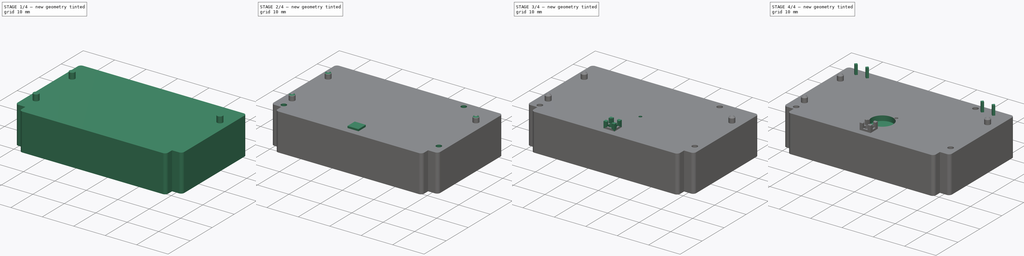
[diagram: build sequence overview — one tinted view per stage of 4, left to right]
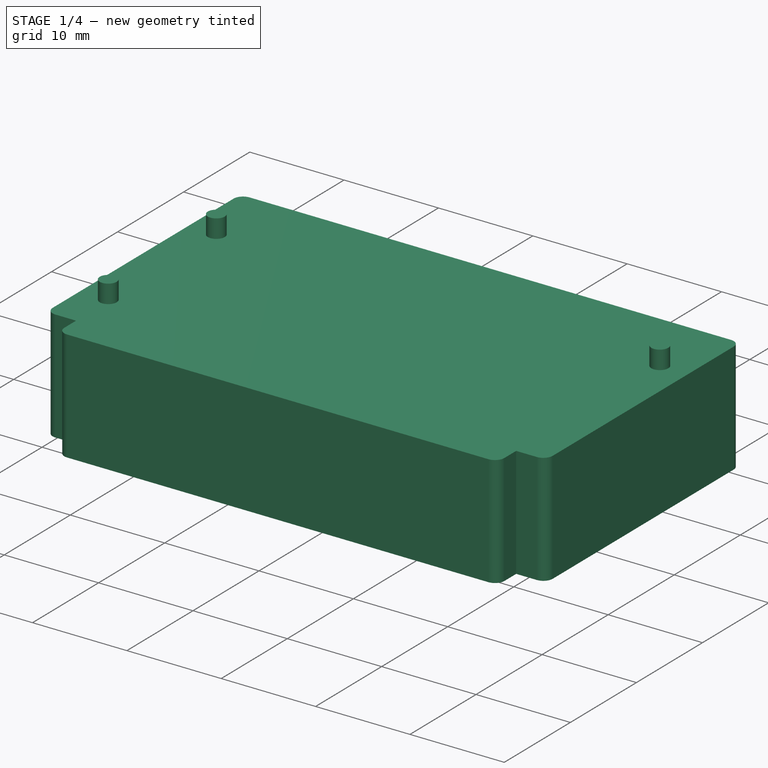
[diagram: stage 1 of 4 — iso view after this stage's code; geometry added in this stage tinted green]
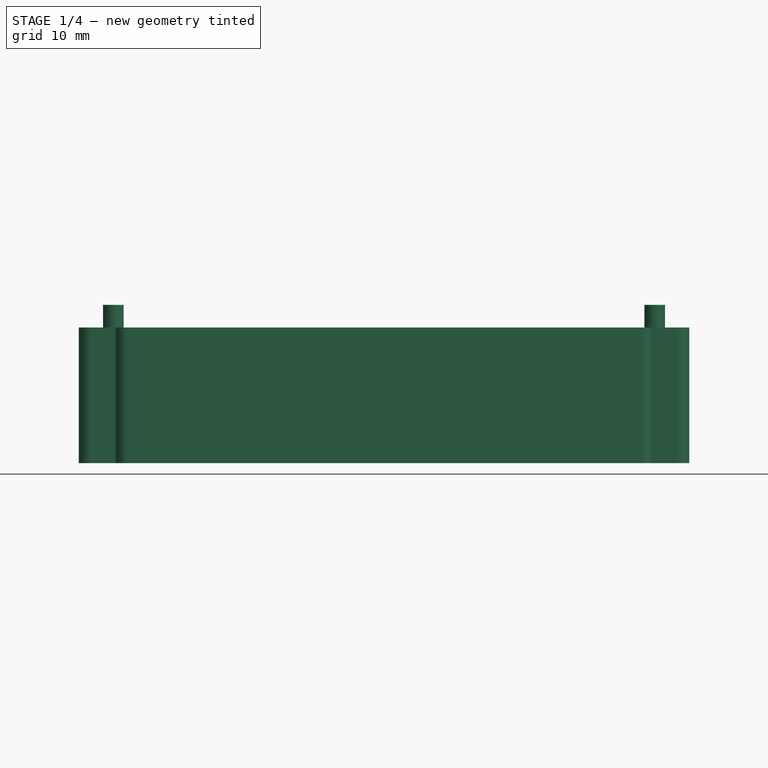
[diagram: stage 1 of 4 — front view after this stage's code; geometry added in this stage tinted green]
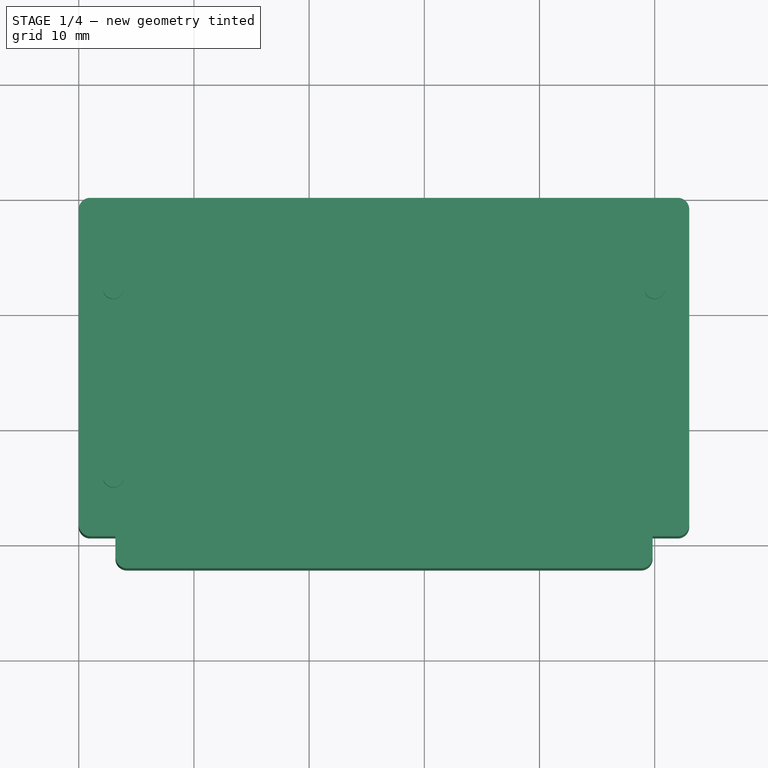
[diagram: stage 1 of 4 — top view after this stage's code; geometry added in this stage tinted green]
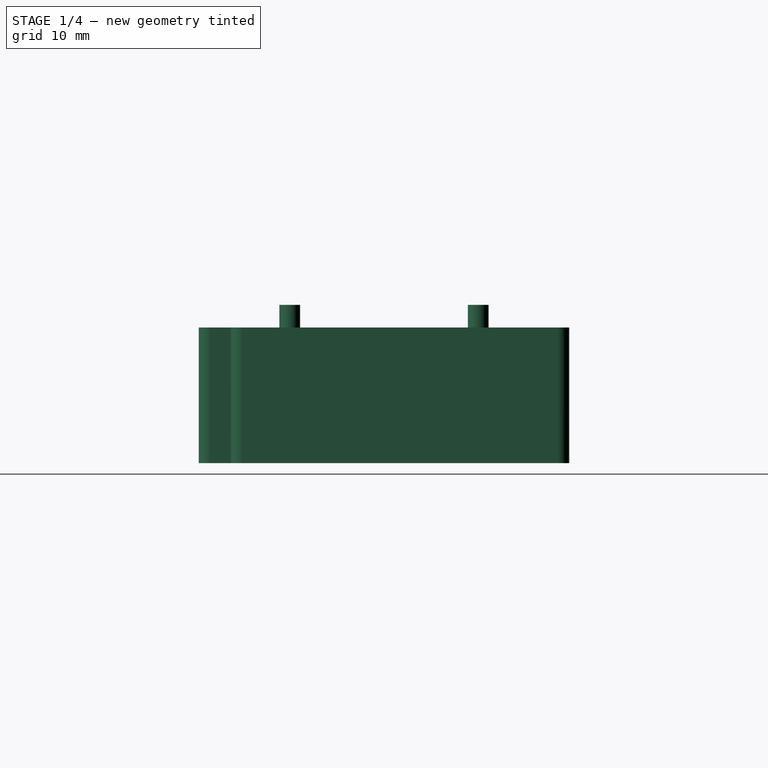
[diagram: stage 1 of 4 — right view after this stage's code; geometry added in this stage tinted green]
FCSTD DOCUMENT  (FreeCAD 1.0R39285 (Git))
Label: HD-1688_Inner
License: All rights reserved
LicenseURL: https://en.wikipedia.org/wiki/All_rights_reserved
objects: Sketcher::SketchObject×11, PartDesign::Pad×6, PartDesign::Pocket×5, PartDesign::Body×2, Spreadsheet::Sheet×1, PartDesign::Fillet×1, PartDesign::Chamfer×1
note: 63 computed .brp shape members not serialized (recipe doc carries the construction recipe); baked Part::Feature solids carry a one-line shape summary decoded from their .brp

FEATURE [Spreadsheet::Sheet] Spreadsheet  label="Dim"
  cells = A1='Dimension; B1='Value (mm); A2='Box Length; B2(Box_Length)==53 mm; A3='Box Width; B3(Box_Width)==32.16 mm; A4='Box Height; B4(Box_Height)==11.78 mm; A5='Notch Length; B5(Notch_Length)==3.18 mm; A6='Notch Width; B6(Notch_Width)==2.78 mm; A7='Pin Diameter; B7(Pin_Diameter)==1.8 mm; A8='Pin Height; B8(Pin_Height)==13.74 mm - B4; A9='Side Filet; B9(Side_Filet)==1 mm; A10='Pin X Distance; B10(Pin_X_Distance)==3.9 mm - Pin_Diameter / 2; A11='Pin Y Distance; B11(Pin_Y_Distance)==8.8 mm - Pin_Diameter / 2; A12='Pin1 X; B12(Pin1_X)==Box_Length - Pin_X_Distance; A13='Pin1 Y; B13(Pin1_Y)==Pin_Y_Distance; A14='Pin2 X; B14(Pin2_X)==Pin_X_Distance; A15='Pin2 Y; B15(Pin2_Y)==Pin_Y_Distance; A16='Pin3 X; B16(Pin3_X)==Pin_X_Distance; A17='Pin3 Y; B17(Pin3_Y)==Box_Width - Pin_Y_Distance; A18='Pin Chamfer; B18(Pin_Chamfer)==0.5 mm; A19='Screw Diameter; B19(Screw_Diameter)==1.7 mm; A20='Screw Length; B20(Screw_Length)==5 mm; A21='Hole1 X; B21(Hole1_X)==50.6 mm; A22='Hole1 Y; B22(Hole1_Y)==25.6 mm; A23='Hole2 X; B23(Hole2_X)==42 mm; A24='Hole2 Y; B24(Hole2_Y)==2 mm; A25='Hole3 X; B25(Hole3_X)==3 mm; A26='Hole3 Y; B26(Hole3_Y)==28 mm; A27='Coil Y; B27(Coil_Y)==2.6 mm; A28='Coil1 X; B28(Coil1_X)==4.3 mm; A29='Coil2 X; B29(Coil2_X)==44.6 mm; A30='Coil Pin Dim; B30(Coil_Pin_Dim)==0.8 mm; A31='Coil Pin Sep; B31(Coil_Pin_Sep)==4.7 mm; A32='Holding Plate Width; B32(Holding_Plate_Width)==19 mm; A33='Holding Plate Length; B33(Holding_Plate_Length)==24 mm; A34='Holding Plate Y; B34(Holding_Plate_Y)==21 mm; A35='Holding Plate Filet; B35(Holding_Plate_Filet)==1 mm; A36='Cell Slot Length; B36(Cell_Slot_Length)==3.3 mm; A37='Cell Slot Width; B37(Cell_Slot_Width)==3.5 mm; A38='Cell Slot Height; B38(Cell_Slot_Height)==0.6 mm; A39='Cell Slot Hole Diameter; B39(Cell_Slot_Hole_Diameter)==2.5 mm; A40='Cell Slot Hole Depth; B40(Cell_Slot_Hole_Depth)==1 mm; A41='Cell Slit Length; B41(Cell_Slit_Length)==1 mm; A42='Cell Slit Width; B42(Cell_Slit_Width)==2.5 mm; A43='Cell Slot Pin Thickness; B43(Cell_Slot_Pin_Thickness)==1 mm; A44='Cell Slot Thickness; B44(Cell_Slot_Thickness)==0.7 mm; A45='Cell Pins Height; B45(Cell_Pins_Height)==3.3 mm - 1.8 mm; A46='Hole Bottom; B46(Hole_Bottom)==4.32 mm; A47='Hole Diameter; B47(Hole_Diameter)==7 mm; A48='Pin Hole Y; B48(Pin_Hole_Y)==11.4 mm; A49='Pin Hole X; B49(Pin_Hole_X)==10 mm; A50='Pin Hole Diameter; B50(Pin_Hole_Diameter)==1 mm
FEATURE [Sketcher::SketchObject] Sketch
  ArcFitTolerance = 1e-06
  AttachmentSupport = -> [XY_Plane]
  FullyConstrained = true
  MakeInternals = false
  MapMode = 5
  expr: Constraints[17] = <<Dim>>.Box_Width
  expr: Constraints[18] = <<Dim>>.Box_Length
  expr: Constraints[19] = <<Dim>>.Notch_Length
  expr: Constraints[22] = <<Dim>>.Notch_Width
  sketch-geometry (8):
    g0: LineSegment StartX=0 StartY=0 StartZ=0 EndX=53 EndY=0 EndZ=0
    g1: LineSegment StartX=53 StartY=0 StartZ=0 EndX=53 EndY=-29.38 EndZ=0
    g2: LineSegment StartX=53 StartY=-29.38 StartZ=0 EndX=49.82 EndY=-29.38 EndZ=0
    g3: LineSegment StartX=49.82 StartY=-29.38 StartZ=0 EndX=49.82 EndY=-32.16 EndZ=0
    g4: LineSegment StartX=49.82 StartY=-32.16 StartZ=0 EndX=3.18 EndY=-32.16 EndZ=0
    g5: LineSegment StartX=3.18 StartY=-32.16 StartZ=0 EndX=3.18 EndY=-29.38 EndZ=0
    g6: LineSegment StartX=3.18 StartY=-29.38 StartZ=0 EndX=0 EndY=-29.38 EndZ=0
    g7: LineSegment StartX=0 StartY=-29.38 StartZ=0 EndX=0 EndY=0 EndZ=0
  constraints (23):
    c: Coincident(g-1,g0)
    c: PointOnObject(g0,g-1)
    c: Coincident(g0,g1)
    c: Vertical(g1)
    c: Coincident(g1,g2)
    c: Horizontal(g2)
    c: Coincident(g2,g3)
    c: Vertical(g3)
    c: Coincident(g3,g4)
    c: Horizontal(g4)
    c: Coincident(g4,g5)
    c: Vertical(g5)
    c: Coincident(g5,g6)
    c: PointOnObject(g6,g-2)
    c: Horizontal(g6)
    c: Coincident(g6,g7)
    c: Coincident(g7,g0)
    c: DistanceY(g4,g0) = 32.16
    c: DistanceX(g0,g0) = 53
    c: DistanceX(g2,g1) = 3.18
    c: Equal(g2,g6)
    c: Equal(g3,g5)
    c: DistanceY(g3,g2) = 2.78
FEATURE [PartDesign::Pad] Pad
  Direction = (0,0,1)
  Length = 11.78
  Length2 = 10
  Profile = -> Sketch
  ReferenceAxis = -> Sketch [N_Axis]
  Refine = true
  Suppressed = false
  Type = 0
  expr: Length = <<Dim>>.Box_Height
FEATURE [PartDesign::Fillet] Fillet
  Base = -> Pad [Edge5,Edge11,Edge2,Edge14,Edge20,Edge1]
  BaseFeature = -> Pad
  Radius = 1
  Refine = true
  SupportTransform = false
  Suppressed = false
  UseAllEdges = false
  expr: Radius = <<Dim>>.Side_Filet
FEATURE [Sketcher::SketchObject] Sketch001
  ArcFitTolerance = 1e-06
  AttachmentSupport = -> [Fillet]
  FullyConstrained = true
  MakeInternals = false
  MapMode = 5
  Placement = pos=(0,0,11.78) rot=(0,0,1;0rad)
  expr: Constraints[2] = <<Dim>>.Pin3_X
  expr: Constraints[3] = -<<Dim>>.Pin3_Y
  expr: Constraints[4] = <<Dim>>.Pin2_X
  expr: Constraints[5] = -<<Dim>>.Pin2_Y
  expr: Constraints[6] = <<Dim>>.Pin1_X
  expr: Constraints[7] = -<<Dim>>.Pin1_Y
  sketch-geometry (3):
    g0: Circle CenterX=3 CenterY=-24.26 CenterZ=0 NormalX=0 NormalY=0 NormalZ=1 AngleXU=0 Radius=0.9
    g1: Circle CenterX=3 CenterY=-7.9 CenterZ=0 NormalX=0 NormalY=0 NormalZ=1 AngleXU=0 Radius=0.9
    g2: Circle CenterX=50 CenterY=-7.9 CenterZ=0 NormalX=0 NormalY=0 NormalZ=1 AngleXU=0 Radius=0.9
  constraints (9):
    c: Diameter(g1) = 1.8
    c: Equal(g1,g0)
    c: DistanceX(g0) = 3
    c: DistanceY(g0) = -24.26
    c: DistanceX(g1) = 3
    c: DistanceY(g1) = -7.9
    c: DistanceX(g2) = 50
    c: DistanceY(g2) = -7.9
    c: Equal(g1,g2)
FEATURE [PartDesign::Pad] Pad001
  BaseFeature = -> Fillet
  Direction = (0,0,1)
  Length = 1.96
  Length2 = 10
  Profile = -> Sketch001
  ReferenceAxis = -> Sketch001 [N_Axis]
  Refine = true
  Suppressed = false
  Type = 0
  expr: Length = <<Dim>>.Pin_Height
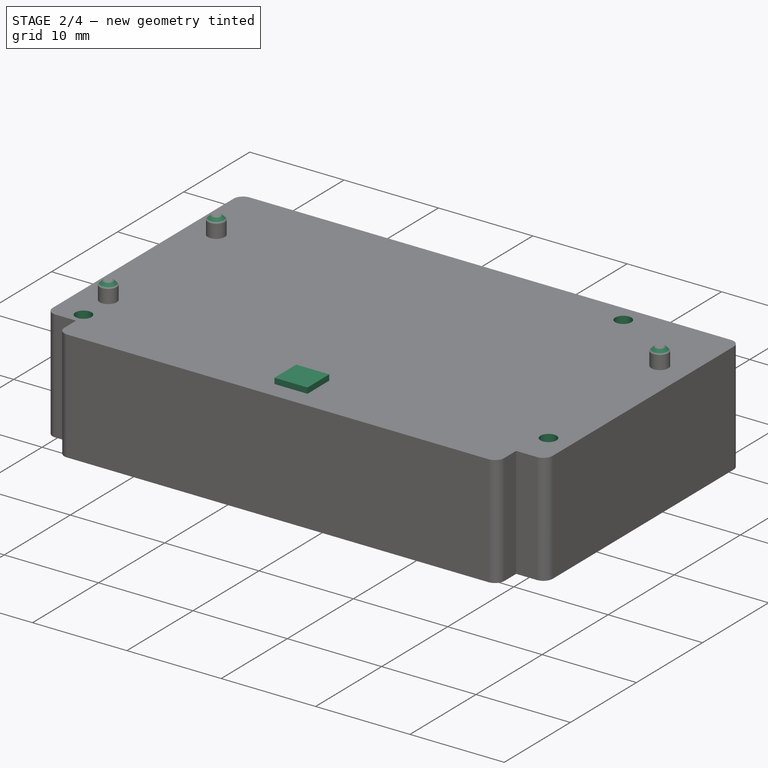
[diagram: stage 2 of 4 — iso view after this stage's code; geometry added in this stage tinted green]
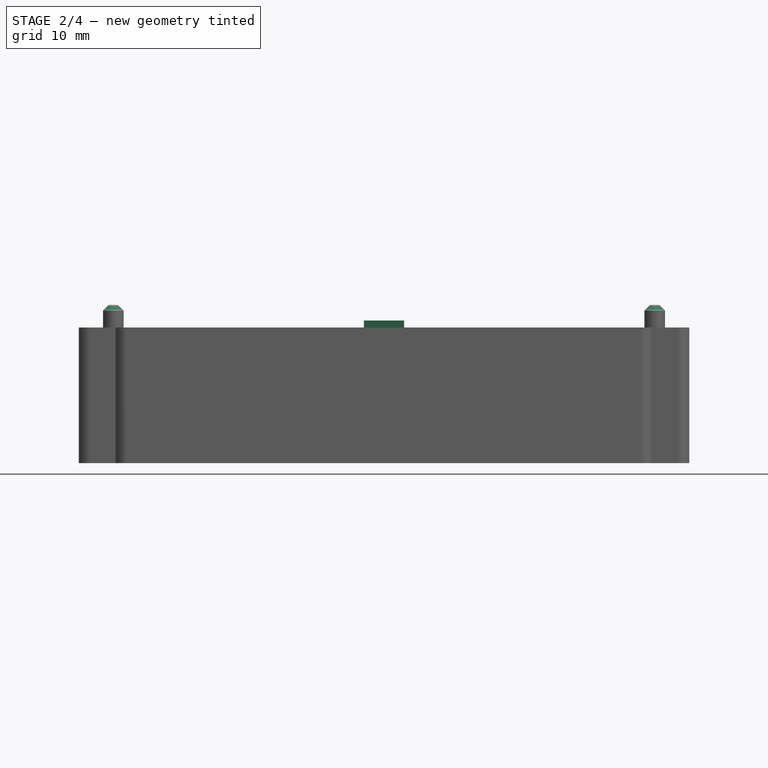
[diagram: stage 2 of 4 — front view after this stage's code; geometry added in this stage tinted green]
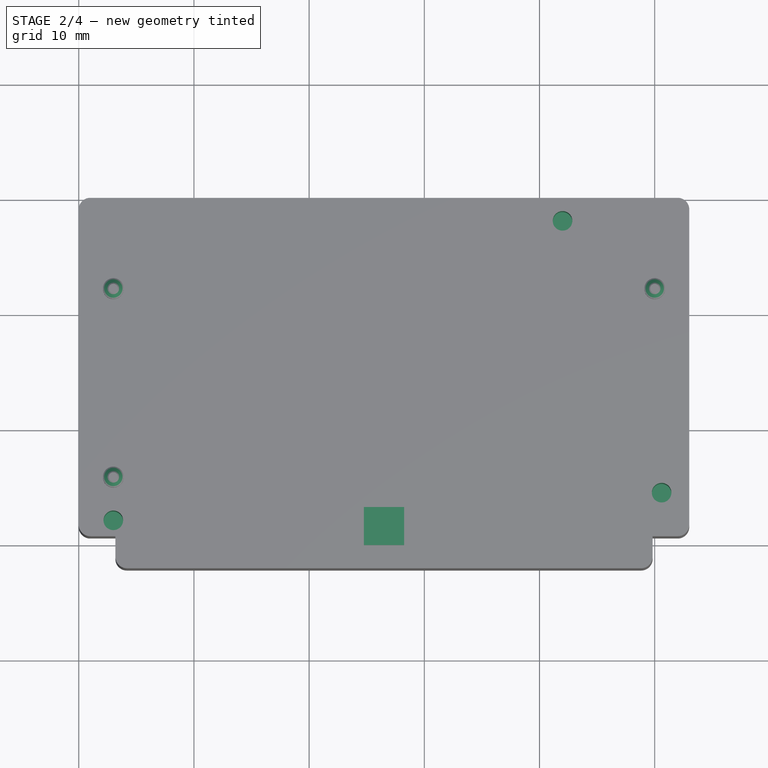
[diagram: stage 2 of 4 — top view after this stage's code; geometry added in this stage tinted green]
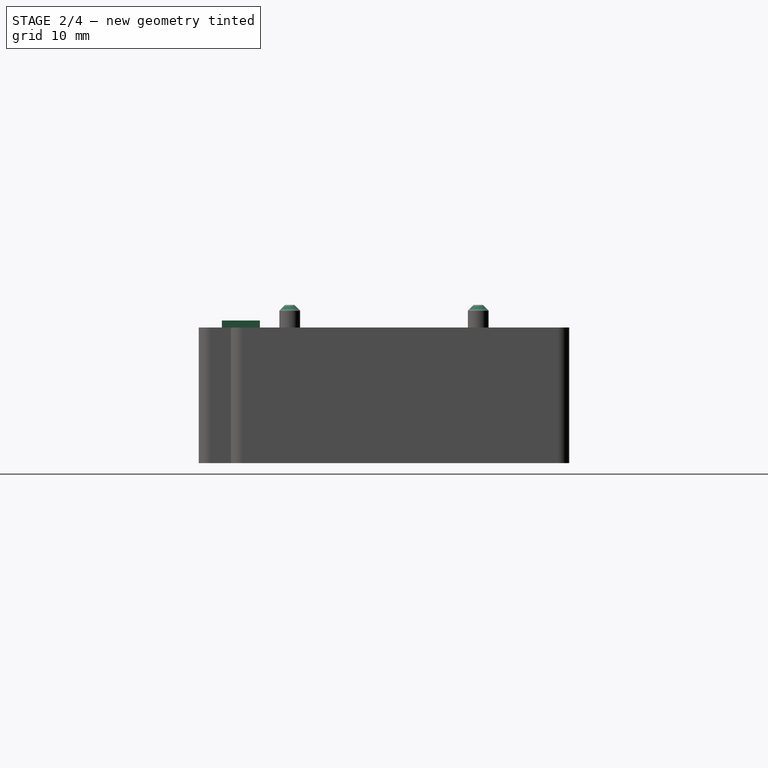
[diagram: stage 2 of 4 — right view after this stage's code; geometry added in this stage tinted green]
FEATURE [PartDesign::Chamfer] Chamfer
  Angle = 45
  Base = -> Pad001 [Edge49,Edge47,Edge51]
  BaseFeature = -> Pad001
  ChamferType = 0
  FlipDirection = false
  Refine = true
  Size = 0.5
  Size2 = 1
  SupportTransform = false
  Suppressed = false
  UseAllEdges = false
  expr: Size = <<Dim>>.Pin_Chamfer
FEATURE [Sketcher::SketchObject] Sketch002
  ArcFitTolerance = 1e-06
  AttachmentSupport = -> [Chamfer]
  FullyConstrained = true
  MakeInternals = false
  MapMode = 5
  Placement = pos=(0,0,11.78) rot=(0,0,1;0rad)
  expr: Constraints[0] = <<Dim>>.Screw_Diameter
  expr: Constraints[3] = <<Dim>>.Hole3_X
  expr: Constraints[4] = -<<Dim>>.Hole3_Y
  expr: Constraints[5] = <<Dim>>.Hole2_X
  expr: Constraints[6] = -<<Dim>>.Hole2_Y
  expr: Constraints[7] = <<Dim>>.Hole1_X
  expr: Constraints[8] = -<<Dim>>.Hole1_Y
  sketch-geometry (3):
    g0: Circle CenterX=50.6 CenterY=-25.6 CenterZ=0 NormalX=0 NormalY=0 NormalZ=1 AngleXU=0 Radius=0.85
    g1: Circle CenterX=42 CenterY=-2 CenterZ=0 NormalX=0 NormalY=0 NormalZ=1 AngleXU=0 Radius=0.85
    g2: Circle CenterX=3 CenterY=-28 CenterZ=0 NormalX=0 NormalY=0 NormalZ=1 AngleXU=0 Radius=0.85
  constraints (9):
    c: Diameter(g0) = 1.7
    c: Equal(g0,g1)
    c: Equal(g0,g2)
    c: DistanceX(g2) = 3
    c: DistanceY(g2) = -28
    c: DistanceX(g1) = 42
    c: DistanceY(g1) = -2
    c: DistanceX(g0) = 50.6
    c: DistanceY(g0) = -25.6
FEATURE [PartDesign::Pocket] Pocket
  BaseFeature = -> Chamfer
  Direction = (0,0,-1)
  Length = 5
  Length2 = 5
  Profile = -> Sketch002
  ReferenceAxis = -> Sketch002 [N_Axis]
  Refine = true
  Suppressed = false
  Type = 0
  expr: Length = <<Dim>>.Screw_Length
FEATURE [PartDesign::Body] Body001  label="Pins"
  AllowCompound = true
  Group = -> [Sketch003,Pad002,Sketch004,Pad003]
  Origin = -> Origin001
  Tip = -> Pad003
FEATURE [Sketcher::SketchObject] Sketch005
  ArcFitTolerance = 1e-06
  AttachmentSupport = -> [Pocket]
  ExternalGeometry = -> [Pocket]
  FullyConstrained = true
  MakeInternals = false
  MapMode = 5
  Placement = pos=(0,0,11.78) rot=(0,0,1;0rad)
  expr: Constraints[19] = <<Dim>>.Holding_Plate_Filet
  expr: Constraints[20] = <<Dim>>.Holding_Plate_Width
  expr: Constraints[21] = <<Dim>>.Holding_Plate_Y
  expr: Constraints[22] = <<Dim>>.Holding_Plate_Length
  sketch-geometry (13):
    g0: LineSegment StartX=14.5 StartY=-12.16 StartZ=0 EndX=14.5 EndY=-29.16 EndZ=0
    g1: LineSegment StartX=15.5 StartY=-30.16 StartZ=0 EndX=37.5 EndY=-30.16 EndZ=0
    g2: LineSegment StartX=38.5 StartY=-29.16 StartZ=0 EndX=38.5 EndY=-12.16 EndZ=0
    g3: LineSegment StartX=37.5 StartY=-11.16 StartZ=0 EndX=15.5 EndY=-11.16 EndZ=0
    g4: ArcOfCircle CenterX=15.5 CenterY=-12.16 CenterZ=0 NormalX=0 NormalY=0 NormalZ=1 AngleXU=0 Radius=1 StartAngle=1.5708 EndAngle=3.14159
    g5: ArcOfCircle CenterX=15.5 CenterY=-29.16 CenterZ=0 NormalX=0 NormalY=0 NormalZ=1 AngleXU=0 Radius=1 StartAngle=3.14159 EndAngle=4.71239
    g6: ArcOfCircle CenterX=37.5 CenterY=-29.16 CenterZ=0 NormalX=0 NormalY=0 NormalZ=1 AngleXU=0 Radius=1 StartAngle=4.71239 EndAngle=6.28319
    g7: ArcOfCircle CenterX=37.5 CenterY=-12.16 CenterZ=0 NormalX=0 NormalY=0 NormalZ=1 AngleXU=0 Radius=1 StartAngle=2e-16 EndAngle=1.5708
    g8: GeomPoint [constr] X=14.5 Y=-11.16 Z=0
    g9: GeomPoint [constr] X=38.5 Y=-30.16 Z=0
    g10: LineSegment [constr] StartX=26.5 StartY=-11.16 StartZ=0 EndX=26.5 EndY=-30.16 EndZ=0
    g11: LineSegment [constr] StartX=0 StartY=-28.38 StartZ=0 EndX=26.5 EndY=-28.38 EndZ=0
    g12: LineSegment [constr] StartX=26.5 StartY=-28.38 StartZ=0 EndX=53 EndY=-28.38 EndZ=0
  constraints (31):
    c: Tangent(g0,g4) = -1.5708
    c: Tangent(g0,g5) = -1.5708
    c: Tangent(g1,g5) = -1.5708
    c: Tangent(g1,g6) = -1.5708
    c: Tangent(g2,g6) = -1.5708
    c: Tangent(g2,g7) = -1.5708
    c: Tangent(g3,g7) = -1.5708
    c: Tangent(g3,g4) = -1.5708
    c: Vertical(g0)
    c: Vertical(g2)
    c: Horizontal(g1)
    c: Horizontal(g3)
    c: Equal(g4,g5)
    c: Equal(g5,g6)
    c: Equal(g6,g7)
    c: PointOnObject(g8,g0)
    c: PointOnObject(g8,g3)
    c: PointOnObject(g9,g1)
    c: PointOnObject(g9,g2)
    c: Radius(g5) = 1
    c: DistanceY(g1,g3) = 19
    c: DistanceY(g-3,g3) = 21
    c: DistanceX(g0,g2) = 24
    c: Symmetric(g3,g3,g10)
    c: Symmetric(g1,g1,g10)
    c: Coincident(g11,g-4)
    c: PointOnObject(g11,g10)
    c: Horizontal(g11)
    c: Coincident(g12,g11)
    c: Coincident(g12,g-5)
    c: Equal(g11,g12)
FEATURE [Sketcher::SketchObject] Sketch006
  ArcFitTolerance = 1e-06
  AttachmentSupport = -> [Pocket]
  ExternalGeometry = -> [Sketch005]
  FullyConstrained = true
  MakeInternals = false
  MapMode = 5
  Placement = pos=(0,0,11.78) rot=(0,0,1;0rad)
  expr: Constraints[10] = <<Dim>>.Cell_Slot_Length
  expr: Constraints[9] = <<Dim>>.Cell_Slot_Width
  sketch-geometry (6):
    g0: LineSegment StartX=24.75 StartY=-30.16 StartZ=0 EndX=28.25 EndY=-30.16 EndZ=0
    g1: LineSegment StartX=28.25 StartY=-30.16 StartZ=0 EndX=28.25 EndY=-26.86 EndZ=0
    g2: LineSegment StartX=28.25 StartY=-26.86 StartZ=0 EndX=24.75 EndY=-26.86 EndZ=0
    g3: LineSegment StartX=24.75 StartY=-26.86 StartZ=0 EndX=24.75 EndY=-30.16 EndZ=0
    g4: LineSegment [constr] StartX=15.5 StartY=-30.16 StartZ=0 EndX=24.75 EndY=-30.16 EndZ=0
    g5: LineSegment [constr] StartX=28.25 StartY=-30.16 StartZ=0 EndX=37.5 EndY=-30.16 EndZ=0
  constraints (16):
    c: Coincident(g0,g1)
    c: Coincident(g1,g2)
    c: Coincident(g2,g3)
    c: Coincident(g3,g0)
    c: Horizontal(g0)
    c: Horizontal(g2)
    c: Vertical(g1)
    c: Vertical(g3)
    c: PointOnObject(g0,g-3)
    c: DistanceX(g2,g1) = 3.5
    c: DistanceY(g0,g1) = 3.3
    c: Coincident(g4,g-3)
    c: Coincident(g4,g0)
    c: Coincident(g5,g0)
    c: Coincident(g5,g-3)
    c: Equal(g5,g4)
FEATURE [PartDesign::Pad] Pad004
  BaseFeature = -> Pocket
  Direction = (0,0,1)
  Length = 0.6
  Length2 = 10
  Profile = -> Sketch006
  ReferenceAxis = -> Sketch006 [N_Axis]
  Refine = true
  Suppressed = false
  Type = 0
  expr: Length = <<Dim>>.Cell_Slot_Height
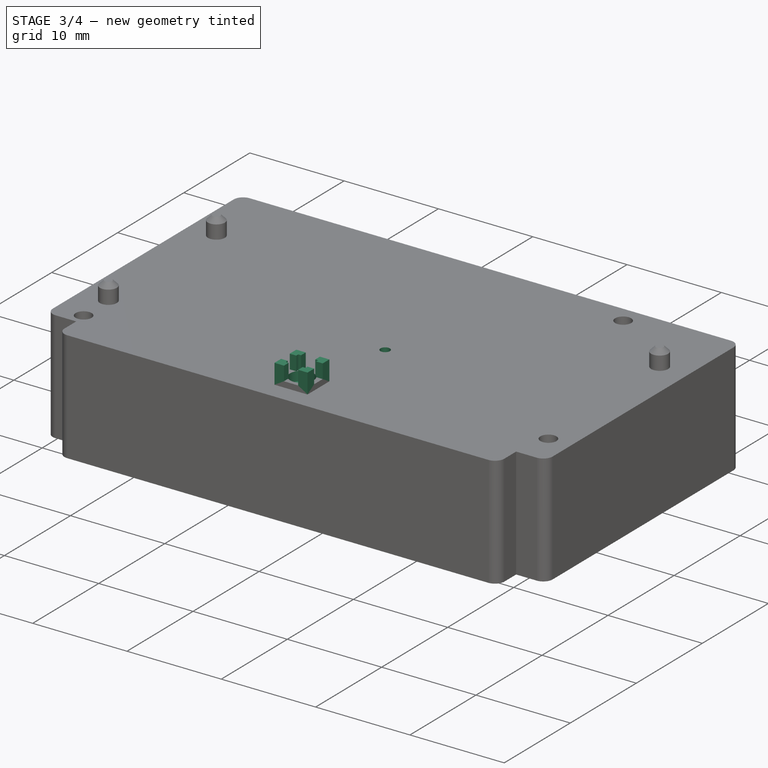
[diagram: stage 3 of 4 — iso view after this stage's code; geometry added in this stage tinted green]
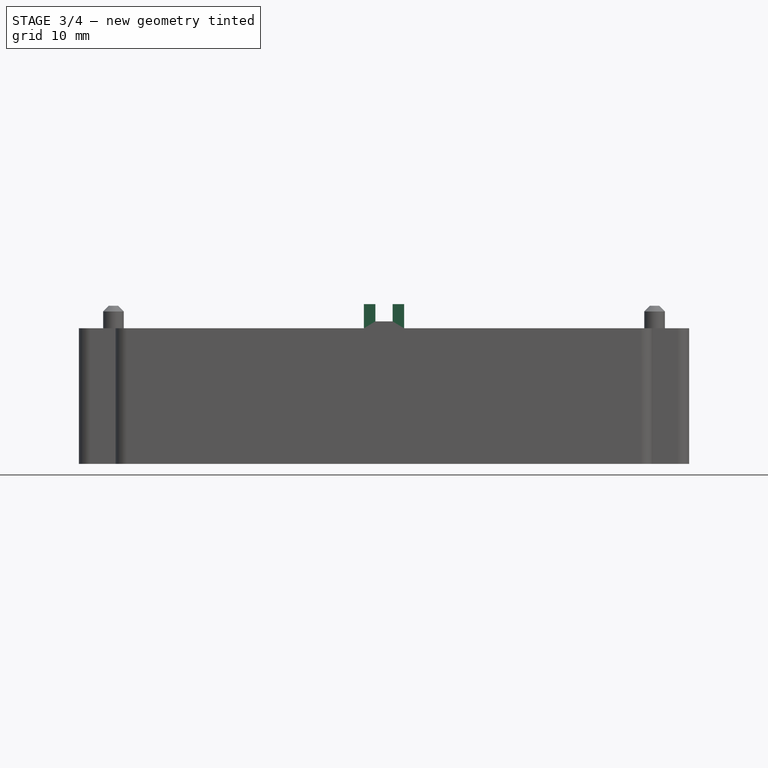
[diagram: stage 3 of 4 — front view after this stage's code; geometry added in this stage tinted green]
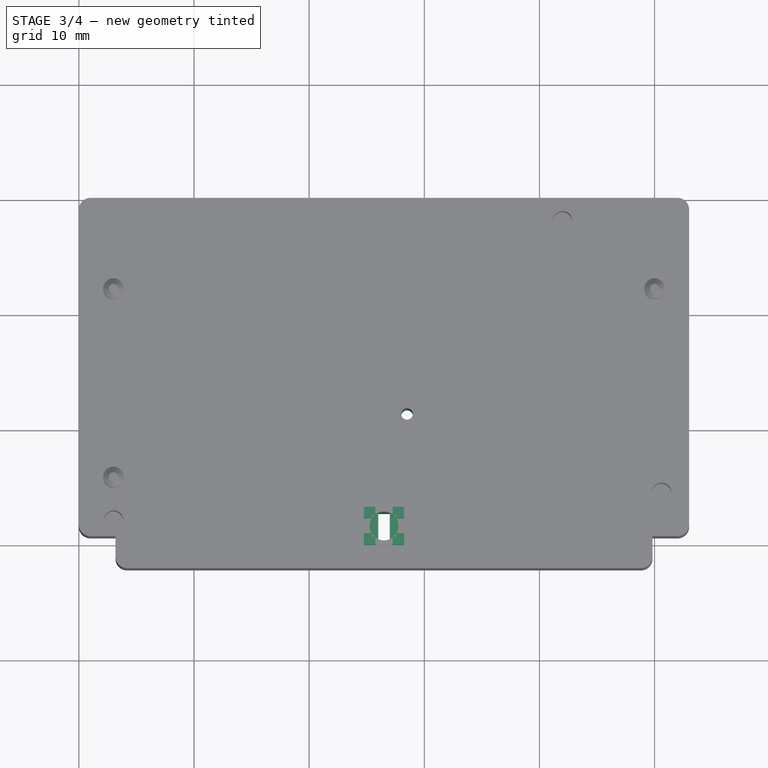
[diagram: stage 3 of 4 — top view after this stage's code; geometry added in this stage tinted green]
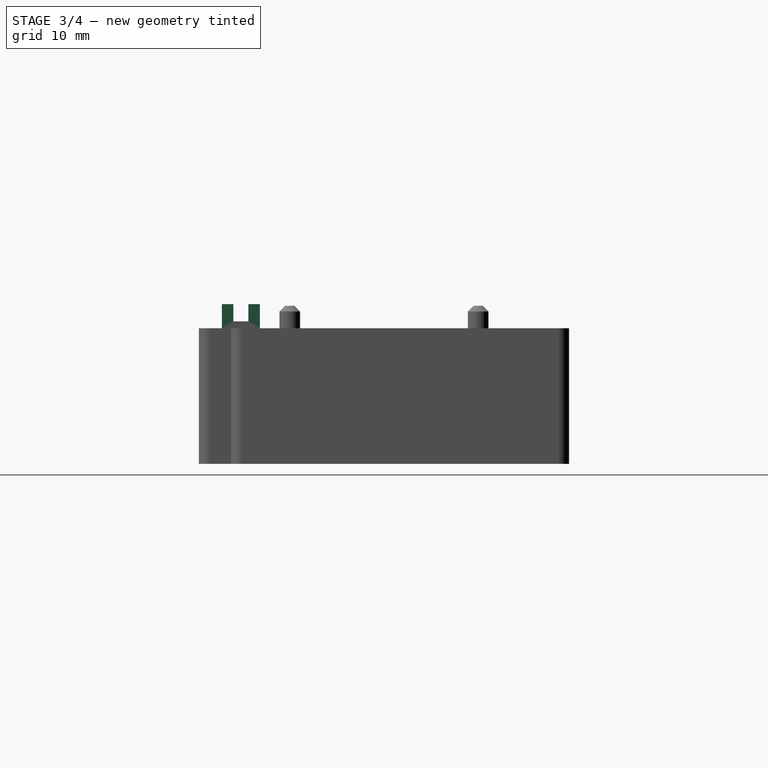
[diagram: stage 3 of 4 — right view after this stage's code; geometry added in this stage tinted green]
FEATURE [Sketcher::SketchObject] Sketch007
  ArcFitTolerance = 1e-06
  AttachmentSupport = -> [Pad004]
  ExternalGeometry = -> [Pad004]
  FullyConstrained = true
  MakeInternals = false
  MapMode = 5
  Placement = pos=(0,0,12.38) rot=(0,0,1;0rad)
  expr: Constraints[1] = <<Dim>>.Cell_Slot_Hole_Diameter
  sketch-geometry (2):
    g0: GeomPoint [constr] X=26.5 Y=-28.51 Z=0
    g1: Circle CenterX=26.5 CenterY=-28.51 CenterZ=0 NormalX=0 NormalY=0 NormalZ=1 AngleXU=0 Radius=1.25
  constraints (3):
    c: Symmetric(g-4,g-3,g0)
    c: Diameter(g1) = 2.5
    c: Coincident(g1,g0)
FEATURE [PartDesign::Pocket] Pocket001
  BaseFeature = -> Pad004
  Direction = (0,0,-1)
  Length = 1
  Length2 = 5
  Profile = -> Sketch007
  ReferenceAxis = -> Sketch007 [N_Axis]
  Refine = true
  Suppressed = false
  Type = 0
  expr: Length = <<Dim>>.Cell_Slot_Hole_Depth
FEATURE [Sketcher::SketchObject] Sketch008
  ArcFitTolerance = 1e-06
  AttachmentSupport = -> [Pocket001]
  ExternalGeometry = -> [Pocket001]
  FullyConstrained = true
  MakeInternals = false
  MapMode = 5
  Placement = pos=(0,0,11.38) rot=(0,0,1;0rad)
  expr: Constraints[10] = <<Dim>>.Cell_Slit_Length
  expr: Constraints[11] = <<Dim>>.Cell_Slit_Width
  sketch-geometry (5):
    g0: LineSegment StartX=26 StartY=-29.76 StartZ=0 EndX=27 EndY=-29.76 EndZ=0
    g1: LineSegment StartX=27 StartY=-29.76 StartZ=0 EndX=27 EndY=-27.26 EndZ=0
    g2: LineSegment StartX=27 StartY=-27.26 StartZ=0 EndX=26 EndY=-27.26 EndZ=0
    g3: LineSegment StartX=26 StartY=-27.26 StartZ=0 EndX=26 EndY=-29.76 EndZ=0
    g4: GeomPoint [constr] X=26.5 Y=-28.51 Z=0
  constraints (12):
    c: Coincident(g0,g1)
    c: Coincident(g1,g2)
    c: Coincident(g2,g3)
    c: Coincident(g3,g0)
    c: Horizontal(g0)
    c: Horizontal(g2)
    c: Vertical(g1)
    c: Vertical(g3)
    c: Symmetric(g2,g0,g4)
    c: Coincident(g4,g-3)
    c: DistanceX(g2,g1) = 1
    c: DistanceY(g1,g1) = 2.5
FEATURE [PartDesign::Pocket] Pocket002
  BaseFeature = -> Pocket001
  Direction = (0,0,-1)
  Length = 0.5
  Length2 = 5
  Profile = -> Sketch008
  ReferenceAxis = -> Sketch008 [N_Axis]
  Refine = true
  Suppressed = false
  Type = 1
FEATURE [Sketcher::SketchObject] Sketch009
  ArcFitTolerance = 1e-06
  AttachmentSupport = -> [Pocket002]
  ExternalGeometry = -> [Pocket002]
  FullyConstrained = true
  MakeInternals = false
  MapMode = 5
  Placement = pos=(0,0,12.38) rot=(0,0,1;0rad)
  expr: Constraints[15] = <<Dim>>.Cell_Slot_Thickness
  expr: Constraints[16] = <<Dim>>.Cell_Slot_Pin_Thickness
  sketch-geometry (24):
    g0: LineSegment StartX=24.75 StartY=-26.86 StartZ=0 EndX=25.75 EndY=-26.86 EndZ=0
    g1: LineSegment StartX=25.75 StartY=-26.86 StartZ=0 EndX=25.75 EndY=-27.56 EndZ=0
    g2: LineSegment StartX=25.75 StartY=-27.56 StartZ=0 EndX=25.45 EndY=-27.56 EndZ=0
    g3: LineSegment StartX=25.45 StartY=-27.56 StartZ=0 EndX=25.45 EndY=-27.86 EndZ=0
    g4: LineSegment StartX=25.45 StartY=-27.86 StartZ=0 EndX=24.75 EndY=-27.86 EndZ=0
    g5: LineSegment StartX=24.75 StartY=-27.86 StartZ=0 EndX=24.75 EndY=-26.86 EndZ=0
    g6: LineSegment StartX=28.25 StartY=-26.86 StartZ=0 EndX=28.25 EndY=-27.86 EndZ=0
    g7: LineSegment StartX=28.25 StartY=-27.86 StartZ=0 EndX=27.55 EndY=-27.86 EndZ=0
    g8: LineSegment StartX=27.55 StartY=-27.86 StartZ=0 EndX=27.55 EndY=-27.56 EndZ=0
    g9: LineSegment StartX=27.55 StartY=-27.56 StartZ=0 EndX=27.25 EndY=-27.56 EndZ=0
    g10: LineSegment StartX=27.25 StartY=-27.56 StartZ=0 EndX=27.25 EndY=-26.86 EndZ=0
    g11: LineSegment StartX=27.25 StartY=-26.86 StartZ=0 EndX=28.25 EndY=-26.86 EndZ=0
    g12: LineSegment StartX=28.25 StartY=-30.16 StartZ=0 EndX=28.25 EndY=-29.16 EndZ=0
    g13: LineSegment StartX=28.25 StartY=-29.16 StartZ=0 EndX=27.55 EndY=-29.16 EndZ=0
    g14: LineSegment StartX=27.55 StartY=-29.16 StartZ=0 EndX=27.55 EndY=-29.46 EndZ=0
    g15: LineSegment StartX=27.55 StartY=-29.46 StartZ=0 EndX=27.25 EndY=-29.46 EndZ=0
    g16: LineSegment StartX=27.25 StartY=-29.46 StartZ=0 EndX=27.25 EndY=-30.16 EndZ=0
    g17: LineSegment StartX=27.25 StartY=-30.16 StartZ=0 EndX=28.25 EndY=-30.16 EndZ=0
    g18: LineSegment StartX=24.75 StartY=-30.16 StartZ=0 EndX=25.75 EndY=-30.16 EndZ=0
    g19: LineSegment StartX=25.75 StartY=-30.16 StartZ=0 EndX=25.75 EndY=-29.46 EndZ=0
    g20: LineSegment StartX=25.75 StartY=-29.46 StartZ=0 EndX=25.45 EndY=-29.46 EndZ=0
    g21: LineSegment StartX=25.45 StartY=-29.46 StartZ=0 EndX=25.45 EndY=-29.16 EndZ=0
    g22: LineSegment StartX=25.45 StartY=-29.16 StartZ=0 EndX=24.75 EndY=-29.16 EndZ=0
    g23: LineSegment StartX=24.75 StartY=-29.16 StartZ=0 EndX=24.75 EndY=-30.16 EndZ=0
  constraints (68):
    c: Coincident(g-4,g0)
    c: PointOnObject(g0,g-3)
    c: Coincident(g0,g1)
    c: Vertical(g1)
    c: Coincident(g1,g2)
    c: Horizontal(g2)
    c: Coincident(g2,g3)
    c: Vertical(g3)
    c: Coincident(g3,g4)
    c: PointOnObject(g4,g-4)
    c: Horizontal(g4)
    c: Coincident(g4,g5)
    c: Coincident(g5,g0)
    c: Equal(g0,g5)
    c: Equal(g1,g4)
    c: DistanceY(g1,g0) = 0.7
    c: DistanceX(g0,g0) = 1
    c: Coincident(g-6,g6)
    c: PointOnObject(g6,g-6)
    c: Coincident(g6,g7)
    c: Horizontal(g7)
    c: Coincident(g7,g8)
    c: Vertical(g8)
    c: Coincident(g8,g9)
    c: Horizontal(g9)
    c: Coincident(g9,g10)
    c: PointOnObject(g10,g-3)
    c: Vertical(g10)
    c: Coincident(g10,g11)
    c: Coincident(g11,g6)
    c: Equal(g6,g11)
    c: Equal(g10,g7)
    c: Equal(g11,g0)
    c: Equal(g10,g1)
    c: Coincident(g-6,g12)
    c: PointOnObject(g12,g-6)
    c: Coincident(g12,g13)
    c: Horizontal(g13)
    c: Coincident(g13,g14)
    c: Vertical(g14)
    c: Coincident(g14,g15)
    c: Horizontal(g15)
    c: Coincident(g15,g16)
    c: PointOnObject(g16,g-5)
    c: Vertical(g16)
    c: Coincident(g16,g17)
    c: Coincident(g17,g12)
    c: Coincident(g-5,g18)
    c: PointOnObject(g18,g-5)
    c: Coincident(g18,g19)
    c: Vertical(g19)
    c: Coincident(g19,g20)
    c: Horizontal(g20)
    c: Coincident(g20,g21)
    c: Vertical(g21)
    c: Coincident(g21,g22)
    c: PointOnObject(g22,g-4)
    c: Horizontal(g22)
    c: Coincident(g22,g23)
    c: Coincident(g23,g18)
    c: Equal(g23,g18)
    c: Equal(g17,g12)
    c: Equal(g12,g6)
    c: Equal(g18,g17)
    c: Equal(g19,g16)
    c: Equal(g16,g13)
    c: Equal(g13,g22)
    c: Equal(g22,g4)
FEATURE [PartDesign::Pad] Pad005
  BaseFeature = -> Pocket002
  Direction = (0,0,1)
  Length = 1.5
  Length2 = 10
  Profile = -> Sketch009
  ReferenceAxis = -> Sketch009 [N_Axis]
  Refine = true
  Suppressed = false
  Type = 0
  expr: Length = <<Dim>>.Cell_Pins_Height
FEATURE [Sketcher::SketchObject] Sketch010
  ArcFitTolerance = 1e-06
  AttachmentSupport = -> [Pad005]
  ExternalGeometry = -> [Sketch005]
  FullyConstrained = true
  MakeInternals = false
  MapMode = 5
  Placement = pos=(0,0,11.78) rot=(0,0,1;0rad)
  expr: Constraints[0] = <<Dim>>.Pin_Hole_Diameter
  expr: Constraints[10] = <<Dim>>.Hole_Bottom
  expr: Constraints[1] = <<Dim>>.Pin_Hole_X
  expr: Constraints[2] = <<Dim>>.Pin_Hole_Y
  expr: Constraints[3] = <<Dim>>.Hole_Diameter
  sketch-geometry (4):
    g0: Circle CenterX=28.5 CenterY=-18.76 CenterZ=0 NormalX=0 NormalY=0 NormalZ=1 AngleXU=0 Radius=0.5
    g1: Circle CenterX=26.5 CenterY=-22.34 CenterZ=0 NormalX=0 NormalY=0 NormalZ=1 AngleXU=0 Radius=3.5
    g2: LineSegment [constr] StartX=26.5 StartY=-22.34 StartZ=0 EndX=26.5 EndY=-25.84 EndZ=0
    g3: LineSegment [constr] StartX=26.5 StartY=-25.84 StartZ=0 EndX=26.5 EndY=-30.16 EndZ=0
  constraints (11):
    c: Diameter(g0) = 1
    c: DistanceX(g0,g-3) = 10
    c: DistanceY(g-4,g0) = 11.4
    c: Diameter(g1) = 7
    c: Coincident(g2,g1)
    c: PointOnObject(g2,g1)
    c: Vertical(g2)
    c: Coincident(g3,g2)
    c: Symmetric(g-4,g-4,g3)
    c: Vertical(g3)
    c: DistanceY(g3,g2) = 4.32
FEATURE [PartDesign::Pocket] Pocket003
  BaseFeature = -> Pad005
  Direction = (0,0,-1)
  Length = 5
  Length2 = 5
  Profile = -> Sketch010 [Edge1]
  ReferenceAxis = -> Sketch010 [N_Axis]
  Refine = true
  Suppressed = false
  Type = 1
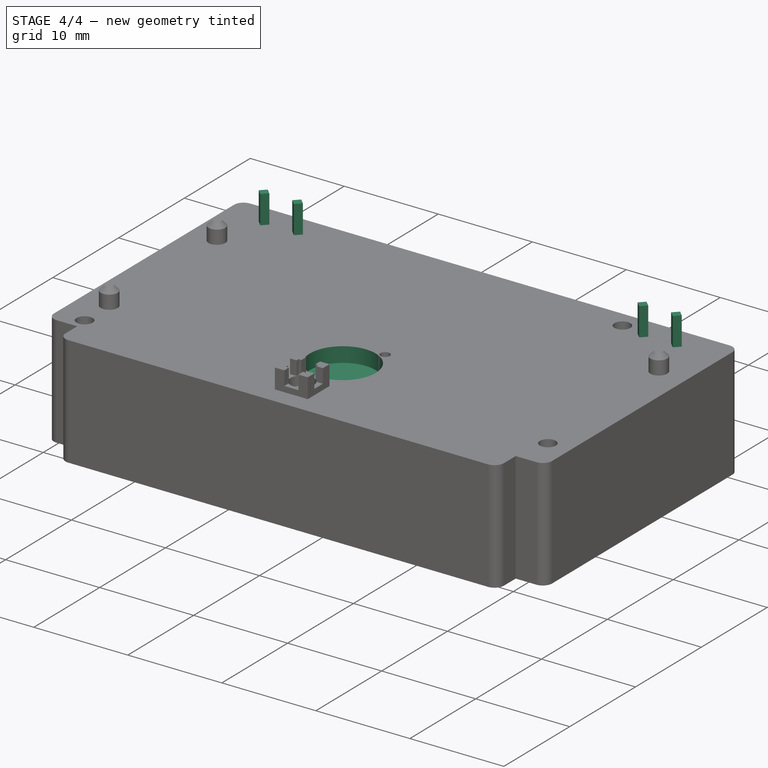
[diagram: stage 4 of 4 — iso view after this stage's code; geometry added in this stage tinted green]
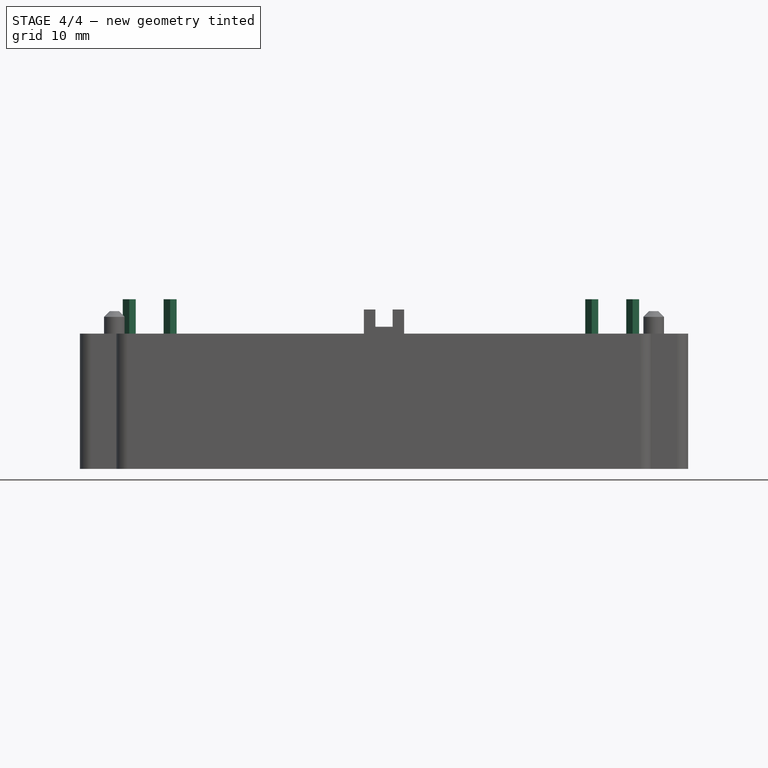
[diagram: stage 4 of 4 — front view after this stage's code; geometry added in this stage tinted green]
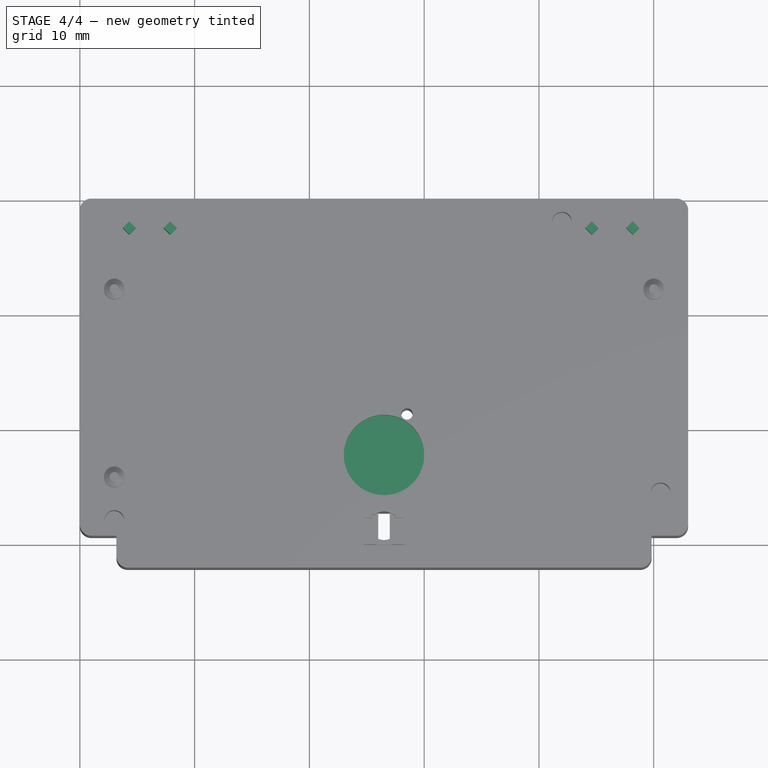
[diagram: stage 4 of 4 — top view after this stage's code; geometry added in this stage tinted green]
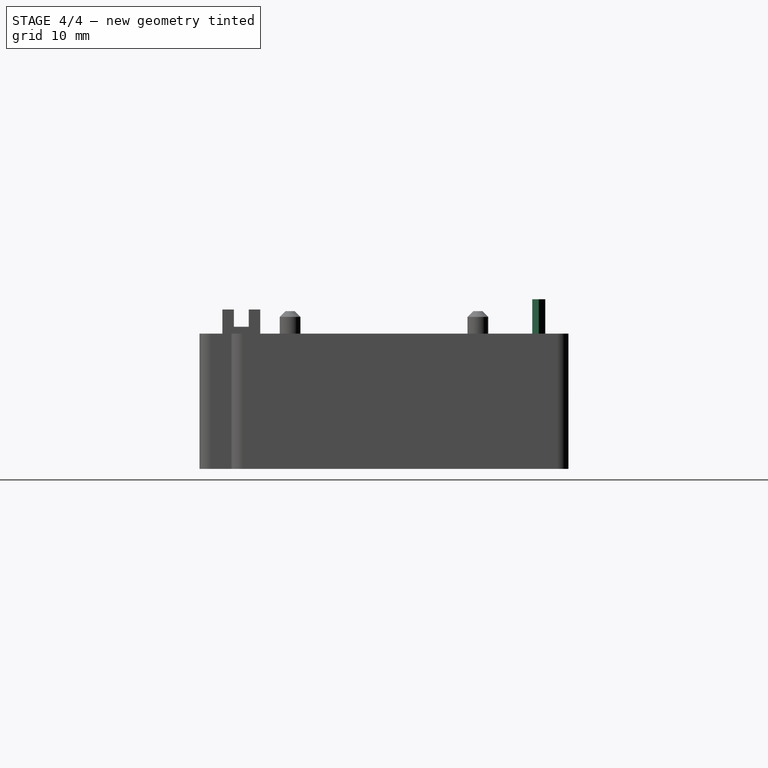
[diagram: stage 4 of 4 — right view after this stage's code; geometry added in this stage tinted green]
FEATURE [Sketcher::SketchObject] Sketch003
  ArcFitTolerance = 1e-06
  AttachmentOffset = pos=(0,0,11.78) rot=(0,0,1;0rad)
  AttachmentSupport = -> [XY_Plane001]
  FullyConstrained = true
  MakeInternals = false
  MapMode = 5
  Placement = pos=(0,0,11.78) rot=(0,0,1;0rad)
  expr: .AttachmentOffset.Base.z = <<Dim>>.Box_Height
  expr: Constraints[10] = <<Dim>>.Coil_Pin_Dim
  expr: Constraints[23] = <<Dim>>.Coil_Pin_Sep
  expr: Constraints[24] = <<Dim>>.Coil1_X
  expr: Constraints[25] = -<<Dim>>.Coil_Y
  sketch-geometry (10):
    g0: LineSegment StartX=7.30294 StartY=-2.6 StartZ=0 EndX=7.86863 EndY=-3.16569 EndZ=0
    g1: LineSegment StartX=7.86863 StartY=-3.16569 StartZ=0 EndX=8.43431 EndY=-2.6 EndZ=0
    g2: LineSegment StartX=8.43431 StartY=-2.6 StartZ=0 EndX=7.86863 EndY=-2.03431 EndZ=0
    g3: LineSegment StartX=7.86863 StartY=-2.03431 StartZ=0 EndX=7.30294 EndY=-2.6 EndZ=0
    g4: GeomPoint [constr] X=7.86863 Y=-2.6 Z=0
    g5: LineSegment StartX=3.73431 StartY=-2.6 StartZ=0 EndX=4.3 EndY=-3.16569 EndZ=0
    g6: LineSegment StartX=4.3 StartY=-3.16569 StartZ=0 EndX=4.86569 EndY=-2.6 EndZ=0
    g7: LineSegment StartX=4.86569 StartY=-2.6 StartZ=0 EndX=4.3 EndY=-2.03431 EndZ=0
    g8: LineSegment StartX=4.3 StartY=-2.03431 StartZ=0 EndX=3.73431 EndY=-2.6 EndZ=0
    g9: GeomPoint [constr] X=4.3 Y=-2.6 Z=0
  constraints (26):
    c: Coincident(g0,g1)
    c: Coincident(g1,g2)
    c: Coincident(g2,g3)
    c: Coincident(g3,g0)
    c: Symmetric(g2,g0,g4)
    c: Equal(g0,g3)
    c: Equal(g3,g2)
    c: Equal(g2,g1)
    c: Perpendicular(g3,g0)
    c: Horizontal(g0,g1)
    c: Distance(g1) = 0.8
    c: Coincident(g5,g6)
    c: Coincident(g6,g7)
    c: Coincident(g7,g8)
    c: Coincident(g8,g5)
    c: Symmetric(g7,g5,g9)
    c: Equal(g5,g8)
    c: Equal(g8,g7)
    c: Equal(g7,g6)
    c: Perpendicular(g8,g5)
    c: Equal(g3,g7)
    c: Horizontal(g4,g9)
    c: Horizontal(g9,g5)
    c: DistanceX(g5,g1) = 4.7
    c: DistanceX(g9) = 4.3
    c: DistanceY(g9) = -2.6
FEATURE [PartDesign::Pad] Pad002
  Direction = (0,0,1)
  Length = 3
  Length2 = 10
  Profile = -> Sketch003
  ReferenceAxis = -> Sketch003 [N_Axis]
  Refine = true
  Suppressed = false
  Type = 0
FEATURE [Sketcher::SketchObject] Sketch004
  ArcFitTolerance = 1e-06
  AttachmentOffset = pos=(0,0,11.78) rot=(0,0,1;0rad)
  AttachmentSupport = -> [XY_Plane001]
  FullyConstrained = true
  MakeInternals = false
  MapMode = 5
  Placement = pos=(0,0,11.78) rot=(0,0,1;0rad)
  expr: .AttachmentOffset.Base.z = <<Dim>>.Box_Height
  expr: Constraints[10] = <<Dim>>.Coil_Pin_Dim
  expr: Constraints[23] = <<Dim>>.Coil_Pin_Sep
  expr: Constraints[24] = <<Dim>>.Coil2_X
  expr: Constraints[25] = -<<Dim>>.Coil_Y
  sketch-geometry (10):
    g0: LineSegment StartX=47.6029 StartY=-2.6 StartZ=0 EndX=48.1686 EndY=-3.16569 EndZ=0
    g1: LineSegment StartX=48.1686 StartY=-3.16569 StartZ=0 EndX=48.7343 EndY=-2.6 EndZ=0
    g2: LineSegment StartX=48.7343 StartY=-2.6 StartZ=0 EndX=48.1686 EndY=-2.03431 EndZ=0
    g3: LineSegment StartX=48.1686 StartY=-2.03431 StartZ=0 EndX=47.6029 EndY=-2.6 EndZ=0
    g4: GeomPoint [constr] X=48.1686 Y=-2.6 Z=0
    g5: LineSegment StartX=44.0343 StartY=-2.6 StartZ=0 EndX=44.6 EndY=-3.16569 EndZ=0
    g6: LineSegment StartX=44.6 StartY=-3.16569 StartZ=0 EndX=45.1657 EndY=-2.6 EndZ=0
    g7: LineSegment StartX=45.1657 StartY=-2.6 StartZ=0 EndX=44.6 EndY=-2.03431 EndZ=0
    g8: LineSegment StartX=44.6 StartY=-2.03431 StartZ=0 EndX=44.0343 EndY=-2.6 EndZ=0
    g9: GeomPoint [constr] X=44.6 Y=-2.6 Z=0
  constraints (26):
    c: Coincident(g0,g1)
    c: Coincident(g1,g2)
    c: Coincident(g2,g3)
    c: Coincident(g3,g0)
    c: Symmetric(g2,g0,g4)
    c: Equal(g0,g3)
    c: Equal(g3,g2)
    c: Equal(g2,g1)
    c: Perpendicular(g3,g0)
    c: Horizontal(g0,g1)
    c: Distance(g1) = 0.8
    c: Coincident(g5,g6)
    c: Coincident(g6,g7)
    c: Coincident(g7,g8)
    c: Coincident(g8,g5)
    c: Symmetric(g7,g5,g9)
    c: Equal(g5,g8)
    c: Equal(g8,g7)
    c: Equal(g7,g6)
    c: Perpendicular(g8,g5)
    c: Equal(g3,g7)
    c: Horizontal(g4,g9)
    c: Horizontal(g9,g5)
    c: DistanceX(g5,g1) = 4.7
    c: DistanceX(g9) = 44.6
    c: DistanceY(g9) = -2.6
FEATURE [PartDesign::Pad] Pad003
  BaseFeature = -> Pad002
  Direction = (0,0,1)
  Length = 3
  Length2 = 10
  Profile = -> Sketch004
  ReferenceAxis = -> Sketch004 [N_Axis]
  Refine = true
  Suppressed = false
  Type = 0
FEATURE [PartDesign::Pocket] Pocket004
  BaseFeature = -> Pocket003
  Direction = (0,0,-1)
  Length = 1.6
  Length2 = 5
  Profile = -> Sketch010 [Edge2]
  ReferenceAxis = -> Sketch010 [N_Axis]
  Refine = true
  Suppressed = false
  Type = 0
FEATURE [PartDesign::Body] Body  label="Box"
  AllowCompound = false
  Group = -> [Sketch,Pad,Fillet,Sketch001,Pad001,Chamfer,Sketch002,Pocket,Sketch005,Sketch006,Pad004,Sketch007,Pocket001,Sketch008,Pocket002,Sketch009,Pad005,Sketch010,Pocket003,Pocket004]
  Origin = -> Origin
  Tip = -> Pocket004
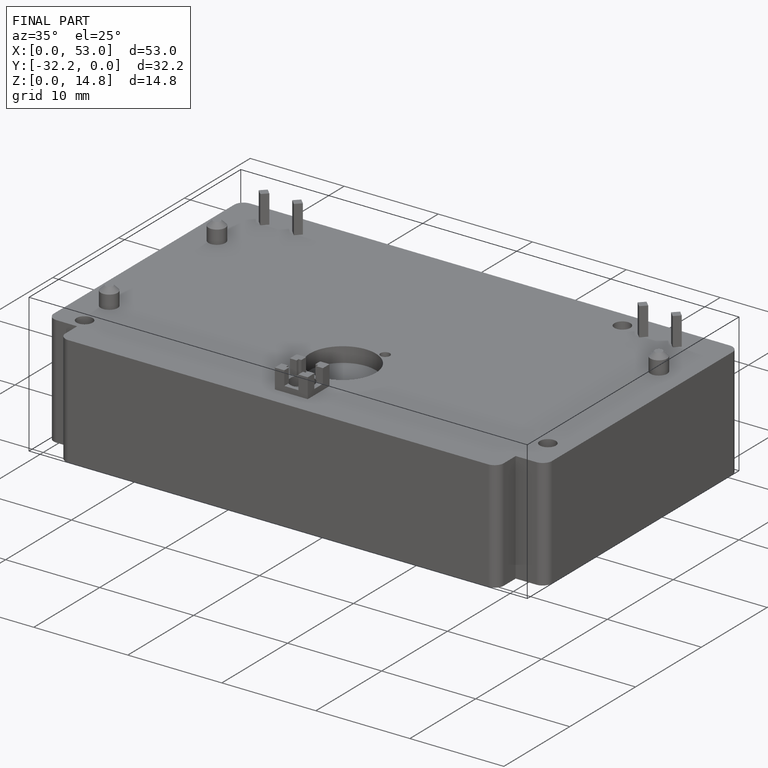
[diagram: finished part — iso view with bounding-box wireframe]
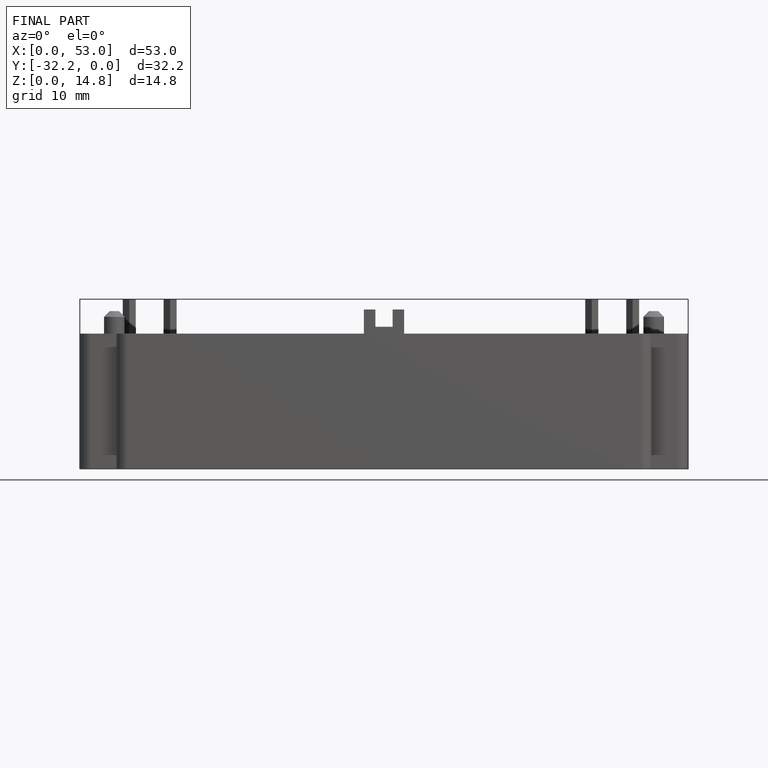
[diagram: finished part — front view with bounding-box wireframe]
